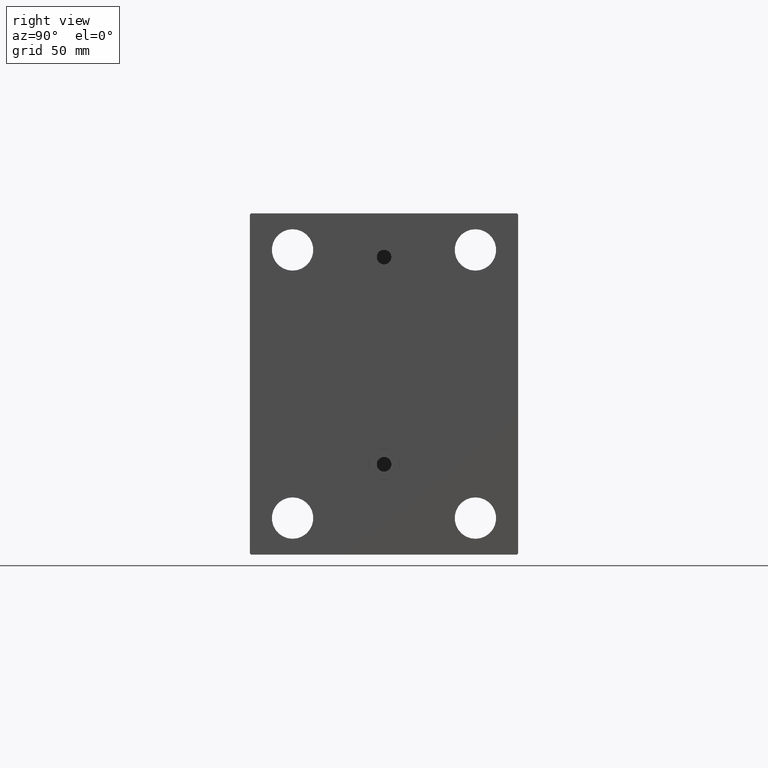
[diagram: clean part render]
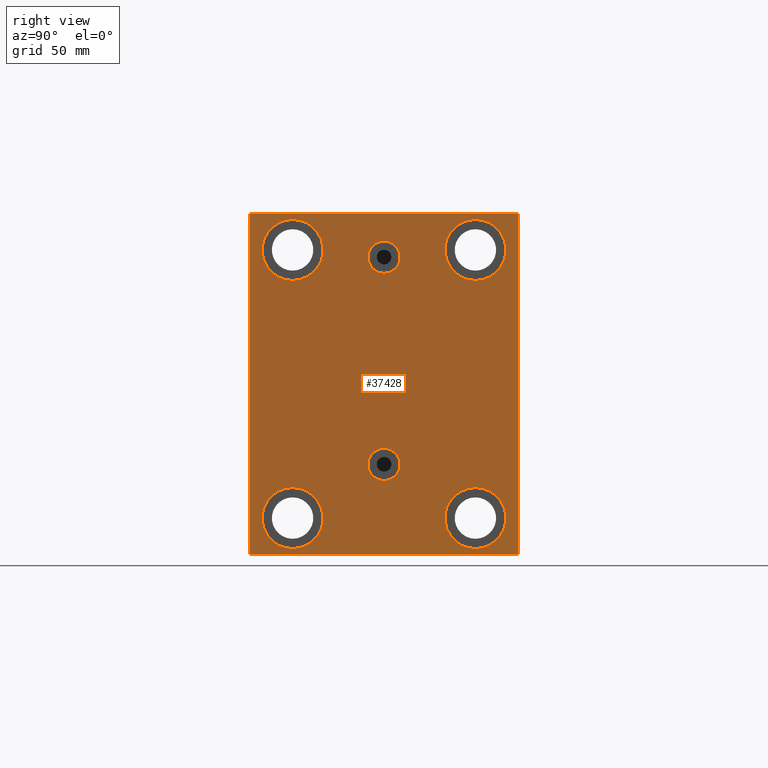
[diagram: same view with one face highlighted and labeled with its STEP entity id]
A machine part, right view. The second image highlights one B-rep face of the part: STEP entity #37428.
In plain terms, the highlighted planar face has unit normal (1, 0, 0).
Its self-contained STEP definition (entity closure, byte-faithful):
#1256 = CIRCLE ( 'NONE', #7300, 12.49999999999999645 ) ;
#1409 = DIRECTION ( 'NONE',  ( 1.000000000000000000, 0.000000000000000000, 0.000000000000000000 ) ) ;
#1624 = VECTOR ( 'NONE', #18667, 1000.000000000000000 ) ;
#1860 = FACE_BOUND ( 'NONE', #10126, .T. ) ;
#2019 = CIRCLE ( 'NONE', #39733, 6.580000000000002736 ) ;
#2356 = EDGE_CURVE ( 'NONE', #21568, #35013, #1256, .T. ) ;
#2785 = VERTEX_POINT ( 'NONE', #20835 ) ;
#2809 = ORIENTED_EDGE ( 'NONE', *, *, #30253, .T. ) ;
#3080 = AXIS2_PLACEMENT_3D ( 'NONE', #28732, #43618, #46247 ) ;
#3761 = AXIS2_PLACEMENT_3D ( 'NONE', #11394, #31516, #24668 ) ;
#3763 = CIRCLE ( 'NONE', #39936, 12.49999999999999645 ) ;
#4481 = VERTEX_POINT ( 'NONE', #28934 ) ;
#5141 = LINE ( 'NONE', #41257, #23325 ) ;
#5191 = FACE_BOUND ( 'NONE', #16023, .T. ) ;
#5224 = DIRECTION ( 'NONE',  ( -1.000000000000000000, -0.000000000000000000, -0.000000000000000000 ) ) ;
#5570 = ORIENTED_EDGE ( 'NONE', *, *, #2356, .T. ) ;
#5879 = FACE_BOUND ( 'NONE', #33983, .T. ) ;
#5922 = CARTESIAN_POINT ( 'NONE',  ( 118.0000000000000000, 4.041334437186266200E-15, -33.00000000000000000 ) ) ;
#6116 = DIRECTION ( 'NONE',  ( -1.000000000000000000, -0.000000000000000000, -0.000000000000000000 ) ) ;
#6370 = CARTESIAN_POINT ( 'NONE',  ( 118.0000000000000000, -37.50000000000002132, -54.99999999999999289 ) ) ;
#6390 = DIRECTION ( 'NONE',  ( 1.000000000000000000, 0.000000000000000000, -0.000000000000000000 ) ) ;
#6419 = VERTEX_POINT ( 'NONE', #13997 ) ;
#6544 = VERTEX_POINT ( 'NONE', #46599 ) ;
#6672 = CARTESIAN_POINT ( 'NONE',  ( 118.0000000000000000, -54.50000000000006395, -70.00000000000002842 ) ) ;
#6909 = DIRECTION ( 'NONE',  ( 0.000000000000000000, 1.000000000000000000, 2.523234146875355012E-16 ) ) ;
#7054 = CARTESIAN_POINT ( 'NONE',  ( 118.0000000000000000, 4.847152031025224453E-15, -26.41999999999999815 ) ) ;
#7181 = EDGE_CURVE ( 'NONE', #27576, #6544, #2019, .T. ) ;
#7300 = AXIS2_PLACEMENT_3D ( 'NONE', #7787, #28998, #43423 ) ;
#7787 = CARTESIAN_POINT ( 'NONE',  ( 118.0000000000000000, 37.50000000000000711, 55.00000000000000711 ) ) ;
#8037 = ORIENTED_EDGE ( 'NONE', *, *, #36121, .T. ) ;
#8958 = FACE_OUTER_BOUND ( 'NONE', #32208, .T. ) ;
#9087 = CARTESIAN_POINT ( 'NONE',  ( 118.0000000000000000, -55.00000000000000711, 69.99999999999998579 ) ) ;
#9176 = AXIS2_PLACEMENT_3D ( 'NONE', #25904, #15753, #40092 ) ;
#9481 = CARTESIAN_POINT ( 'NONE',  ( 118.0000000000000000, -62.25000000000081002, -62.24999999999908340 ) ) ;
#9675 = EDGE_CURVE ( 'NONE', #13014, #31400, #43577, .T. ) ;
#9961 = EDGE_CURVE ( 'NONE', #18556, #2785, #21743, .T. ) ;
#10126 = EDGE_LOOP ( 'NONE', ( #18329, #11054 ) ) ;
#10532 = CARTESIAN_POINT ( 'NONE',  ( 118.0000000000000000, -37.50000000000000711, 42.50000000000000711 ) ) ;
#11054 = ORIENTED_EDGE ( 'NONE', *, *, #9675, .F. ) ;
#11368 = LINE ( 'NONE', #37731, #1624 ) ;
#11394 = CARTESIAN_POINT ( 'NONE',  ( 118.0000000000000000, -37.50000000000000711, 55.00000000000000711 ) ) ;
#11698 = CARTESIAN_POINT ( 'NONE',  ( 118.0000000000000000, -37.50000000000000711, 67.50000000000000000 ) ) ;
#11886 = EDGE_CURVE ( 'NONE', #20263, #18351, #27900, .T. ) ;
#12317 = CARTESIAN_POINT ( 'NONE',  ( 118.0000000000000000, 54.50000000000004974, -70.00000000000000000 ) ) ;
#13014 = VERTEX_POINT ( 'NONE', #40774 ) ;
#13080 = DIRECTION ( 'NONE',  ( 0.000000000000000000, 0.000000000000000000, -1.000000000000000000 ) ) ;
#13964 = CARTESIAN_POINT ( 'NONE',  ( 118.0000000000000000, -55.00000000000000711, -70.00000000000002842 ) ) ;
#13997 = CARTESIAN_POINT ( 'NONE',  ( 118.0000000000000000, 55.00000000000002132, -69.50000000000002842 ) ) ;
#14097 = ORIENTED_EDGE ( 'NONE', *, *, #43339, .F. ) ;
#14482 = CIRCLE ( 'NONE', #19003, 12.49999999999999645 ) ;
#14642 = DIRECTION ( 'NONE',  ( 0.000000000000000000, 0.000000000000000000, -1.000000000000000000 ) ) ;
#15092 = CARTESIAN_POINT ( 'NONE',  ( 118.0000000000000000, -37.50000000000002132, -67.49999999999998579 ) ) ;
#15753 = DIRECTION ( 'NONE',  ( -1.000000000000000000, -0.000000000000000000, -0.000000000000000000 ) ) ;
#15880 = AXIS2_PLACEMENT_3D ( 'NONE', #44257, #21834, #33155 ) ;
#16023 = EDGE_LOOP ( 'NONE', ( #33753, #39933 ) ) ;
#16102 = ORIENTED_EDGE ( 'NONE', *, *, #27853, .T. ) ;
#16126 = ORIENTED_EDGE ( 'NONE', *, *, #36980, .T. ) ;
#16249 = PLANE ( 'NONE',  #25033 ) ;
#16481 = FACE_BOUND ( 'NONE', #19115, .T. ) ;
#16623 = DIRECTION ( 'NONE',  ( 0.000000000000000000, 0.000000000000000000, 1.000000000000000000 ) ) ;
#16788 = ORIENTED_EDGE ( 'NONE', *, *, #28898, .T. ) ;
#17202 = DIRECTION ( 'NONE',  ( -1.000000000000000000, -0.000000000000000000, -0.000000000000000000 ) ) ;
#17227 = DIRECTION ( 'NONE',  ( 0.000000000000000000, 0.000000000000000000, 1.000000000000000000 ) ) ;
#17920 = AXIS2_PLACEMENT_3D ( 'NONE', #21286, #39681, #14642 ) ;
#18236 = LINE ( 'NONE', #9481, #21169 ) ;
#18329 = ORIENTED_EDGE ( 'NONE', *, *, #30558, .F. ) ;
#18351 = VERTEX_POINT ( 'NONE', #12317 ) ;
#18364 = CARTESIAN_POINT ( 'NONE',  ( 118.0000000000000000, 37.50000000000000711, 67.50000000000000000 ) ) ;
#18556 = VERTEX_POINT ( 'NONE', #15092 ) ;
#18667 = DIRECTION ( 'NONE',  ( 0.000000000000000000, -1.982541115402065110E-16, 1.000000000000000000 ) ) ;
#19003 = AXIS2_PLACEMENT_3D ( 'NONE', #31816, #6116, #34888 ) ;
#19115 = EDGE_LOOP ( 'NONE', ( #27193, #19273 ) ) ;
#19262 = ORIENTED_EDGE ( 'NONE', *, *, #32129, .T. ) ;
#19273 = ORIENTED_EDGE ( 'NONE', *, *, #27972, .T. ) ;
#19601 = DIRECTION ( 'NONE',  ( 0.000000000000000000, 0.000000000000000000, 1.000000000000000000 ) ) ;
#19723 = CARTESIAN_POINT ( 'NONE',  ( 118.0000000000000000, 62.25000000000002842, -62.25000000000002842 ) ) ;
#20172 = CARTESIAN_POINT ( 'NONE',  ( 118.0000000000000000, 4.041334437186266200E-15, -33.00000000000000000 ) ) ;
#20263 = VERTEX_POINT ( 'NONE', #6672 ) ;
#20835 = CARTESIAN_POINT ( 'NONE',  ( 118.0000000000000000, -37.50000000000002132, -42.49999999999999289 ) ) ;
#21037 = ORIENTED_EDGE ( 'NONE', *, *, #44570, .T. ) ;
#21169 = VECTOR ( 'NONE', #27408, 1000.000000000000114 ) ;
#21286 = CARTESIAN_POINT ( 'NONE',  ( 118.0000000000000000, -8.775864102628257178E-15, 52.00000000000000711 ) ) ;
#21568 = VERTEX_POINT ( 'NONE', #24302 ) ;
#21743 = CIRCLE ( 'NONE', #43608, 12.49999999999999645 ) ;
#21834 = DIRECTION ( 'NONE',  ( -1.000000000000000000, -0.000000000000000000, -0.000000000000000000 ) ) ;
#21907 = VERTEX_POINT ( 'NONE', #41962 ) ;
#21988 = AXIS2_PLACEMENT_3D ( 'NONE', #37555, #5224, #19601 ) ;
#23301 = DIRECTION ( 'NONE',  ( 0.000000000000000000, -0.7071067811865474617, -0.7071067811865474617 ) ) ;
#23325 = VECTOR ( 'NONE', #23301, 1000.000000000000114 ) ;
#24302 = CARTESIAN_POINT ( 'NONE',  ( 118.0000000000000000, 37.50000000000000711, 42.50000000000000711 ) ) ;
#24447 = CARTESIAN_POINT ( 'NONE',  ( 118.0000000000000000, -55.00000000000000711, -69.50000000000007105 ) ) ;
#24668 = DIRECTION ( 'NONE',  ( 0.000000000000000000, 0.000000000000000000, 1.000000000000000000 ) ) ;
#24766 = CARTESIAN_POINT ( 'NONE',  ( 118.0000000000000000, -55.00000000000000711, 69.49999999999998579 ) ) ;
#25033 = AXIS2_PLACEMENT_3D ( 'NONE', #26648, #1409, #27118 ) ;
#25148 = VERTEX_POINT ( 'NONE', #29794 ) ;
#25370 = ORIENTED_EDGE ( 'NONE', *, *, #33950, .T. ) ;
#25874 = EDGE_LOOP ( 'NONE', ( #14097, #27904 ) ) ;
#25904 = CARTESIAN_POINT ( 'NONE',  ( 118.0000000000000000, -37.50000000000002132, -54.99999999999999289 ) ) ;
#26219 = ORIENTED_EDGE ( 'NONE', *, *, #31294, .T. ) ;
#26648 = CARTESIAN_POINT ( 'NONE',  ( 118.0000000000000000, 0.000000000000000000, 0.000000000000000000 ) ) ;
#27042 = DIRECTION ( 'NONE',  ( -0.000000000000000000, 0.7071067811865474617, 0.7071067811865474617 ) ) ;
#27117 = CARTESIAN_POINT ( 'NONE',  ( 118.0000000000000000, 62.24999999999999289, 62.24999999999999289 ) ) ;
#27118 = DIRECTION ( 'NONE',  ( 0.000000000000000000, 0.000000000000000000, -1.000000000000000000 ) ) ;
#27193 = ORIENTED_EDGE ( 'NONE', *, *, #37568, .T. ) ;
#27408 = DIRECTION ( 'NONE',  ( -0.000000000000000000, 0.7071067811865376918, -0.7071067811865573427 ) ) ;
#27562 = LINE ( 'NONE', #27117, #28584 ) ;
#27576 = VERTEX_POINT ( 'NONE', #7054 ) ;
#27853 = EDGE_CURVE ( 'NONE', #21907, #40660, #5141, .T. ) ;
#27900 = LINE ( 'NONE', #13964, #30527 ) ;
#27904 = ORIENTED_EDGE ( 'NONE', *, *, #7181, .F. ) ;
#27972 = EDGE_CURVE ( 'NONE', #25148, #30814, #3763, .T. ) ;
#28584 = VECTOR ( 'NONE', #45533, 1000.000000000000114 ) ;
#28732 = CARTESIAN_POINT ( 'NONE',  ( 118.0000000000000000, -8.775864102628257178E-15, 52.00000000000000711 ) ) ;
#28898 = EDGE_CURVE ( 'NONE', #42418, #21907, #45871, .T. ) ;
#28934 = CARTESIAN_POINT ( 'NONE',  ( 118.0000000000000000, 54.99999999999999289, 69.50000000000000000 ) ) ;
#28998 = DIRECTION ( 'NONE',  ( -1.000000000000000000, -0.000000000000000000, -0.000000000000000000 ) ) ;
#29794 = CARTESIAN_POINT ( 'NONE',  ( 118.0000000000000000, 37.49999999999997868, -42.49999999999999289 ) ) ;
#30045 = VECTOR ( 'NONE', #27042, 1000.000000000000114 ) ;
#30199 = CIRCLE ( 'NONE', #3080, 6.580000000000002736 ) ;
#30253 = EDGE_CURVE ( 'NONE', #34385, #35658, #44535, .T. ) ;
#30527 = VECTOR ( 'NONE', #6909, 1000.000000000000000 ) ;
#30558 = EDGE_CURVE ( 'NONE', #31400, #13014, #30199, .T. ) ;
#30814 = VERTEX_POINT ( 'NONE', #36765 ) ;
#31205 = CARTESIAN_POINT ( 'NONE',  ( 118.0000000000000000, 54.99999999999999289, 70.00000000000000000 ) ) ;
#31294 = EDGE_CURVE ( 'NONE', #34466, #20263, #18236, .T. ) ;
#31400 = VERTEX_POINT ( 'NONE', #46313 ) ;
#31516 = DIRECTION ( 'NONE',  ( -1.000000000000000000, -0.000000000000000000, -0.000000000000000000 ) ) ;
#31816 = CARTESIAN_POINT ( 'NONE',  ( 118.0000000000000000, 37.49999999999997868, -54.99999999999999289 ) ) ;
#32129 = EDGE_CURVE ( 'NONE', #35658, #34385, #32379, .T. ) ;
#32208 = EDGE_LOOP ( 'NONE', ( #16788, #16102, #25370, #26219, #39039, #40177, #8037, #21037 ) ) ;
#32379 = CIRCLE ( 'NONE', #3761, 12.49999999999999645 ) ;
#32466 = DIRECTION ( 'NONE',  ( -1.000000000000000000, -0.000000000000000000, -0.000000000000000000 ) ) ;
#33155 = DIRECTION ( 'NONE',  ( 0.000000000000000000, 0.000000000000000000, 1.000000000000000000 ) ) ;
#33408 = DIRECTION ( 'NONE',  ( 0.000000000000000000, 0.000000000000000000, 1.000000000000000000 ) ) ;
#33753 = ORIENTED_EDGE ( 'NONE', *, *, #9961, .T. ) ;
#33950 = EDGE_CURVE ( 'NONE', #40660, #34466, #41879, .T. ) ;
#33983 = EDGE_LOOP ( 'NONE', ( #2809, #19262 ) ) ;
#34385 = VERTEX_POINT ( 'NONE', #10532 ) ;
#34466 = VERTEX_POINT ( 'NONE', #24447 ) ;
#34570 = DIRECTION ( 'NONE',  ( 1.000000000000000000, 0.000000000000000000, -0.000000000000000000 ) ) ;
#34657 = FACE_BOUND ( 'NONE', #25874, .T. ) ;
#34888 = DIRECTION ( 'NONE',  ( 0.000000000000000000, 0.000000000000000000, 1.000000000000000000 ) ) ;
#35013 = VERTEX_POINT ( 'NONE', #18364 ) ;
#35658 = VERTEX_POINT ( 'NONE', #11698 ) ;
#36121 = EDGE_CURVE ( 'NONE', #6419, #4481, #11368, .T. ) ;
#36512 = EDGE_LOOP ( 'NONE', ( #5570, #16126 ) ) ;
#36765 = CARTESIAN_POINT ( 'NONE',  ( 118.0000000000000000, 37.49999999999997868, -67.49999999999998579 ) ) ;
#36980 = EDGE_CURVE ( 'NONE', #35013, #21568, #42334, .T. ) ;
#37088 = EDGE_CURVE ( 'NONE', #2785, #18556, #46118, .T. ) ;
#37428 = ADVANCED_FACE ( 'NONE', ( #1860, #34657, #16481, #5879, #45080, #5191, #8958 ), #16249, .T. ) ;
#37555 = CARTESIAN_POINT ( 'NONE',  ( 118.0000000000000000, 37.50000000000000711, 55.00000000000000711 ) ) ;
#37568 = EDGE_CURVE ( 'NONE', #30814, #25148, #14482, .T. ) ;
#37731 = CARTESIAN_POINT ( 'NONE',  ( 118.0000000000000000, 55.00000000000002132, -70.00000000000000000 ) ) ;
#39039 = ORIENTED_EDGE ( 'NONE', *, *, #11886, .T. ) ;
#39681 = DIRECTION ( 'NONE',  ( 1.000000000000000000, 0.000000000000000000, 0.000000000000000000 ) ) ;
#39733 = AXIS2_PLACEMENT_3D ( 'NONE', #20172, #34570, #16623 ) ;
#39784 = CARTESIAN_POINT ( 'NONE',  ( 118.0000000000000000, 37.49999999999997868, -54.99999999999999289 ) ) ;
#39933 = ORIENTED_EDGE ( 'NONE', *, *, #37088, .T. ) ;
#39936 = AXIS2_PLACEMENT_3D ( 'NONE', #39784, #32466, #33408 ) ;
#39997 = VECTOR ( 'NONE', #13080, 1000.000000000000000 ) ;
#40092 = DIRECTION ( 'NONE',  ( 0.000000000000000000, 0.000000000000000000, 1.000000000000000000 ) ) ;
#40177 = ORIENTED_EDGE ( 'NONE', *, *, #41933, .T. ) ;
#40660 = VERTEX_POINT ( 'NONE', #24766 ) ;
#40774 = CARTESIAN_POINT ( 'NONE',  ( 118.0000000000000000, -7.970046508789298136E-15, 58.58000000000000540 ) ) ;
#40869 = CARTESIAN_POINT ( 'NONE',  ( 118.0000000000000000, 54.49999999999999289, 70.00000000000000000 ) ) ;
#41257 = CARTESIAN_POINT ( 'NONE',  ( 118.0000000000000000, -62.25000000000000000, 62.25000000000000000 ) ) ;
#41879 = LINE ( 'NONE', #9087, #39997 ) ;
#41933 = EDGE_CURVE ( 'NONE', #18351, #6419, #45006, .T. ) ;
#41962 = CARTESIAN_POINT ( 'NONE',  ( 118.0000000000000000, -54.50000000000000711, 69.99999999999998579 ) ) ;
#42150 = AXIS2_PLACEMENT_3D ( 'NONE', #5922, #6390, #17227 ) ;
#42201 = VECTOR ( 'NONE', #42329, 1000.000000000000000 ) ;
#42329 = DIRECTION ( 'NONE',  ( 0.000000000000000000, -1.000000000000000000, -1.261617073437677999E-16 ) ) ;
#42334 = CIRCLE ( 'NONE', #21988, 12.49999999999999645 ) ;
#42418 = VERTEX_POINT ( 'NONE', #40869 ) ;
#43339 = EDGE_CURVE ( 'NONE', #6544, #27576, #46681, .T. ) ;
#43423 = DIRECTION ( 'NONE',  ( 0.000000000000000000, 0.000000000000000000, 1.000000000000000000 ) ) ;
#43577 = CIRCLE ( 'NONE', #17920, 6.580000000000002736 ) ;
#43608 = AXIS2_PLACEMENT_3D ( 'NONE', #6370, #17202, #45104 ) ;
#43618 = DIRECTION ( 'NONE',  ( 1.000000000000000000, 0.000000000000000000, 0.000000000000000000 ) ) ;
#44257 = CARTESIAN_POINT ( 'NONE',  ( 118.0000000000000000, -37.50000000000000711, 55.00000000000000711 ) ) ;
#44535 = CIRCLE ( 'NONE', #15880, 12.49999999999999645 ) ;
#44570 = EDGE_CURVE ( 'NONE', #4481, #42418, #27562, .T. ) ;
#45006 = LINE ( 'NONE', #19723, #30045 ) ;
#45080 = FACE_BOUND ( 'NONE', #36512, .T. ) ;
#45104 = DIRECTION ( 'NONE',  ( 0.000000000000000000, 0.000000000000000000, 1.000000000000000000 ) ) ;
#45533 = DIRECTION ( 'NONE',  ( -0.000000000000000000, -0.7071067811865474617, 0.7071067811865474617 ) ) ;
#45871 = LINE ( 'NONE', #31205, #42201 ) ;
#46118 = CIRCLE ( 'NONE', #9176, 12.49999999999999645 ) ;
#46247 = DIRECTION ( 'NONE',  ( 0.000000000000000000, 0.000000000000000000, -1.000000000000000000 ) ) ;
#46313 = CARTESIAN_POINT ( 'NONE',  ( 118.0000000000000000, -8.775864102628257178E-15, 45.42000000000000171 ) ) ;
#46599 = CARTESIAN_POINT ( 'NONE',  ( 118.0000000000000000, 4.041334437186266200E-15, -39.58000000000000540 ) ) ;
#46681 = CIRCLE ( 'NONE', #42150, 6.580000000000002736 ) ;